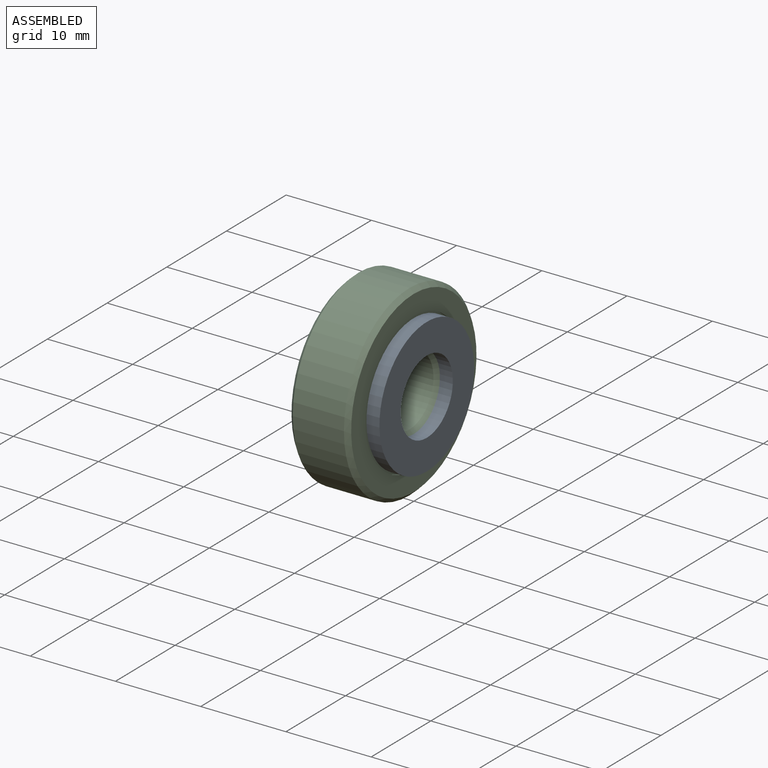
[diagram: assembled view]
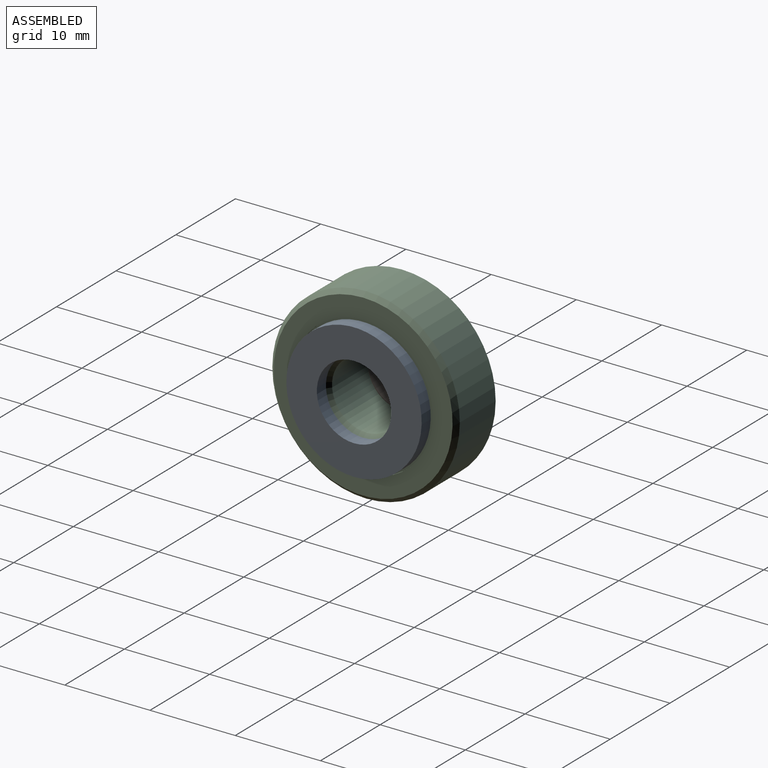
[diagram: assembled view, second angle]
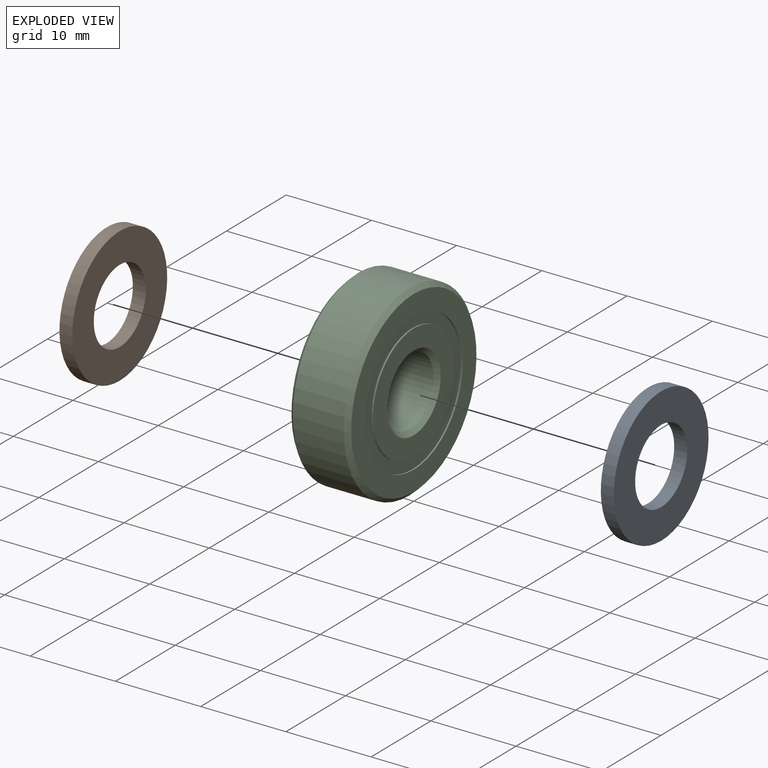
[diagram: exploded view]
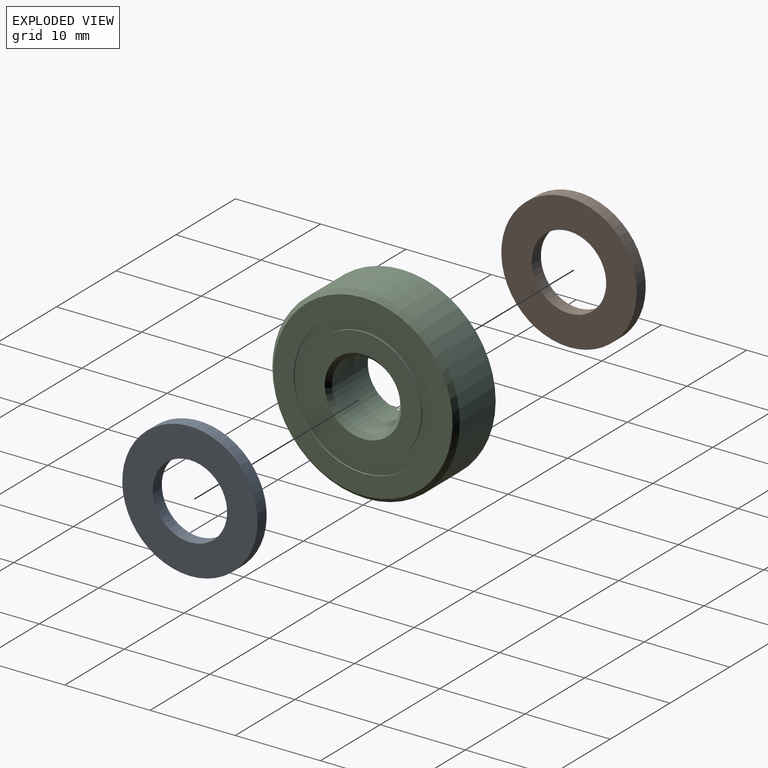
[diagram: exploded view, second angle]
ASSEMBLY  parts=3 mates=2
PART A: 4 faces, bbox 15.9x1.5x15.9 mm
  f0: cylinder r=4.37mm len=8.73mm, axis (0,1,0), area 41.8mm2, adj f2,f3
  f1: cylinder r=7.94mm len=15.88mm, axis (0,1,0), area 76mm2, adj f2,f3
  f2: plane 15.88x15.88mm, normal (0,-1,0), area 138.1mm2, adj f0,f1
  f3: plane 15.88x15.88mm, normal (0,1,0), area 138.1mm2, adj f0,f1
PART B: same geometry as A
PART C: 16 faces, bbox 7x22x22 mm
  f0: plane 13.68x13.68mm, normal (1,0,0), area 83.4mm2, adj f11,f14
  f1: cylinder r=4mm len=8mm, axis (-1,0,0), area 150.8mm2, adj f12,f14
  f2: plane 13.68x13.68mm, normal (-1,0,0), area 83.4mm2, adj f3,f12
  f3: cylinder r=6.84mm len=13.68mm, axis (-1,0,0), area 7.5mm2, adj f2,f4
  f4: plane 16.32x16.32mm, normal (-1,0,0), area 62.1mm2, adj f3,f5
  f5: cylinder r=8.16mm len=16.32mm, axis (-1,0,0), area 9mm2, adj f4,f6
  f6: plane 21x21mm, normal (-1,0,0), area 137.2mm2, adj f5,f13
  f7: cylinder r=11mm len=22mm, axis (-1,0,0), area 414.7mm2, adj f13,f15
  f8: plane 21x21mm, normal (1,0,0), area 137.2mm2, adj f9,f15
  f9: cylinder r=8.16mm len=16.32mm, axis (-1,0,0), area 9mm2, adj f8,f10
  f10: plane 16.32x16.32mm, normal (1,0,0), area 62.1mm2, adj f9,f11
  f11: cylinder r=6.84mm len=13.68mm, axis (-1,0,0), area 7.5mm2, adj f0,f10
  f12: cone r=4mm half-angle=45deg, axis (-1,0,0), area 18.9mm2, adj f1,f2
  f13: cone r=10.5mm half-angle=45deg, axis (1,0,0), area 47.8mm2, adj f6,f7
  f14: cone r=4.5mm half-angle=45deg, axis (1,0,0), area 18.9mm2, adj f0,f1
  f15: cone r=11mm half-angle=45deg, axis (-1,0,0), area 47.8mm2, adj f7,f8
PLACE A rot(axis=(0.58,0.58,-0.58),120deg) t=(1.52,-50,30)mm
PLACE B rot(axis=(0.58,0.58,-0.58),120deg) t=(-7,-50,30)mm
PLACE C t=(-28.5,0,0)mm
MATE fastened A.f0 <-> C.f13  axis (-1,0,0) through (0,0,0)mm
MATE fastened B.f0 <-> C.f13  axis (1,0,0) through (-7,0,0)mm
